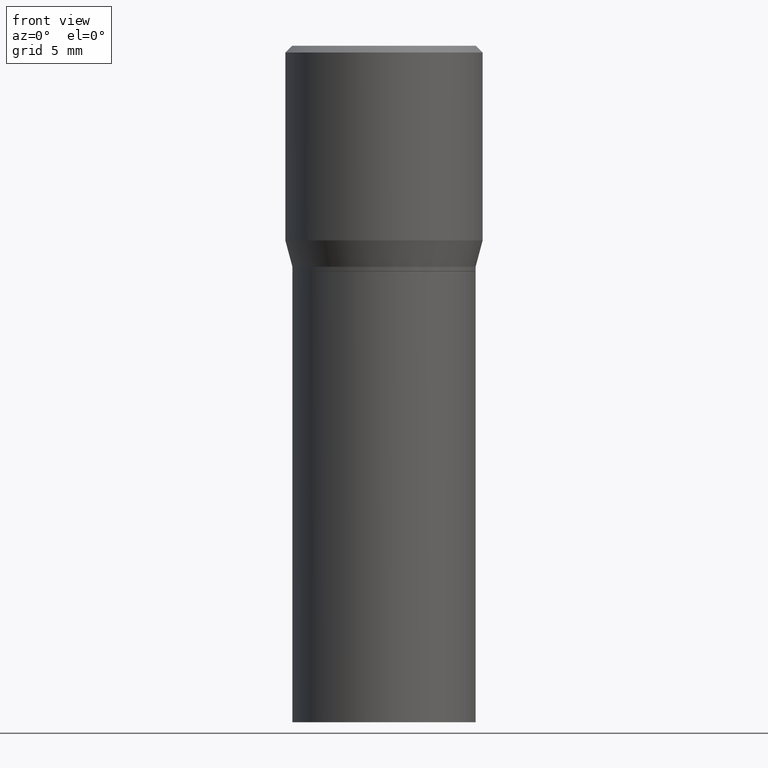
[diagram: clean part render]
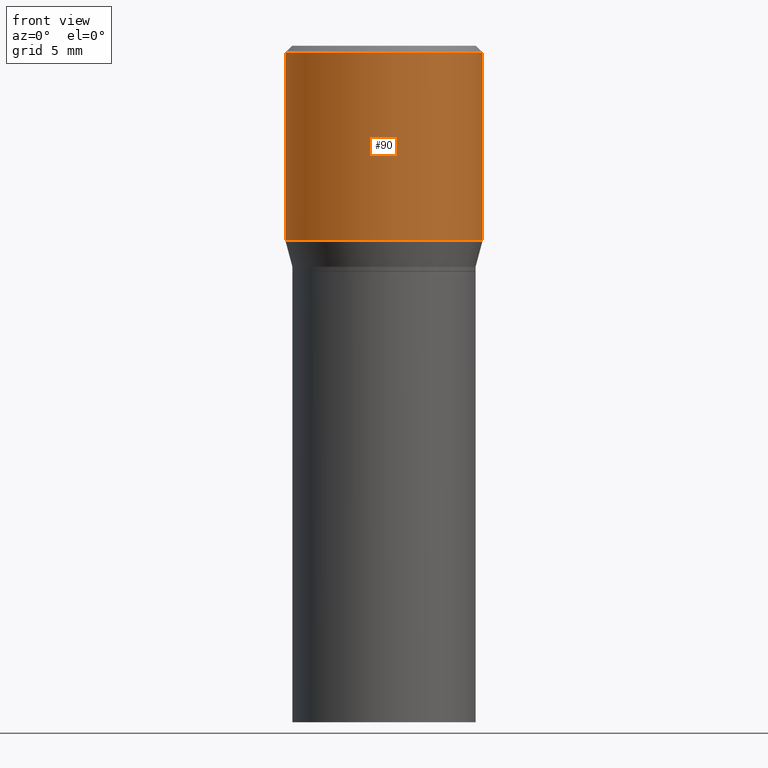
[diagram: same view with one face highlighted and labeled with its STEP entity id]
A machine part, front view. The second image highlights one B-rep face of the part: STEP entity #90.
In plain terms, the highlighted cylindrical surface (partial cylindrical patch) has radius 5.5562 mm, axis along (-0, 0, 1).
Its self-contained STEP definition (entity closure, byte-faithful):
#4 = VERTEX_POINT ( 'NONE', #233 ) ;
#14 = ORIENTED_EDGE ( 'NONE', *, *, #75, .T. ) ;
#18 = VERTEX_POINT ( 'NONE', #134 ) ;
#35 = DIRECTION ( 'NONE',  ( 1.000000000000000000, -6.982962677686266711E-15, 4.876176775795935232E-29 ) ) ;
#75 = EDGE_CURVE ( 'NONE', #113, #4, #437, .T. ) ;
#90 = ADVANCED_FACE ( 'NONE', ( #405 ), #212, .T. ) ;
#99 = ORIENTED_EDGE ( 'NONE', *, *, #346, .F. ) ;
#100 = LINE ( 'NONE', #391, #386 ) ;
#105 = LINE ( 'NONE', #331, #128 ) ;
#113 = VERTEX_POINT ( 'NONE', #173 ) ;
#122 = AXIS2_PLACEMENT_3D ( 'NONE', #422, #429, #263 ) ;
#128 = VECTOR ( 'NONE', #294, 39.37007874015748143 ) ;
#134 = CARTESIAN_POINT ( 'NONE',  ( -0.2187500000000000000, 7.746759649129616577E-16, -0.01499999999999999944 ) ) ;
#149 = AXIS2_PLACEMENT_3D ( 'NONE', #315, #326, #400 ) ;
#154 = DIRECTION ( 'NONE',  ( -2.445468806185136877E-29, 3.491481338843145188E-15, 1.000000000000000000 ) ) ;
#173 = CARTESIAN_POINT ( 'NONE',  ( -0.2187500000000000000, 4.741191543335144142E-17, -0.4315934048615475138 ) ) ;
#190 = EDGE_LOOP ( 'NONE', ( #354, #14, #308, #99 ) ) ;
#212 = CYLINDRICAL_SURFACE ( 'NONE', #270, 0.2187500000000000000 ) ;
#233 = CARTESIAN_POINT ( 'NONE',  ( 0.2187500000000000000, -3.034423404785738170E-15, -0.4315934048615475138 ) ) ;
#250 = DIRECTION ( 'NONE',  ( -2.445468806185136597E-29, 3.491481338843145583E-15, 1.000000000000000000 ) ) ;
#263 = DIRECTION ( 'NONE',  ( 1.000000000000000000, -6.982962677686266711E-15, 0.000000000000000000 ) ) ;
#270 = AXIS2_PLACEMENT_3D ( 'NONE', #290, #250, #35 ) ;
#290 = CARTESIAN_POINT ( 'NONE',  ( 0.000000000000000000, 0.000000000000000000, 0.000000000000000000 ) ) ;
#293 = VERTEX_POINT ( 'NONE', #306 ) ;
#294 = DIRECTION ( 'NONE',  ( -2.445468806185136877E-29, 3.491481338843145188E-15, 1.000000000000000000 ) ) ;
#306 = CARTESIAN_POINT ( 'NONE',  ( 0.2187500000000000000, -1.579895305826517922E-15, -0.01499999999999999944 ) ) ;
#308 = ORIENTED_EDGE ( 'NONE', *, *, #434, .T. ) ;
#315 = CARTESIAN_POINT ( 'NONE',  ( 1.055448208544146876E-29, -1.506900319041867721E-15, -0.4315934048615475138 ) ) ;
#317 = CIRCLE ( 'NONE', #122, 0.2187500000000000000 ) ;
#326 = DIRECTION ( 'NONE',  ( -2.445468806185136597E-29, 3.491481338843145583E-15, 1.000000000000000000 ) ) ;
#331 = CARTESIAN_POINT ( 'NONE',  ( 0.2187500000000000000, -1.527523085743870843E-15, 1.066663669705360885E-29 ) ) ;
#346 = EDGE_CURVE ( 'NONE', #18, #293, #317, .T. ) ;
#354 = ORIENTED_EDGE ( 'NONE', *, *, #385, .F. ) ;
#385 = EDGE_CURVE ( 'NONE', #113, #18, #100, .T. ) ;
#386 = VECTOR ( 'NONE', #154, 39.37007874015748143 ) ;
#391 = CARTESIAN_POINT ( 'NONE',  ( -0.2187500000000000000, 1.554312234475219157E-15, -1.076017050993260622E-29 ) ) ;
#400 = DIRECTION ( 'NONE',  ( 1.000000000000000000, -6.982962677686265133E-15, 0.000000000000000000 ) ) ;
#405 = FACE_OUTER_BOUND ( 'NONE', #190, .T. ) ;
#422 = CARTESIAN_POINT ( 'NONE',  ( 3.668203209277705088E-31, -5.237222008264718399E-17, -0.01499999999999999944 ) ) ;
#429 = DIRECTION ( 'NONE',  ( -2.445468806185136597E-29, 3.491481338843145583E-15, 1.000000000000000000 ) ) ;
#434 = EDGE_CURVE ( 'NONE', #4, #293, #105, .T. ) ;
#437 = CIRCLE ( 'NONE', #149, 0.2187500000000000000 ) ;